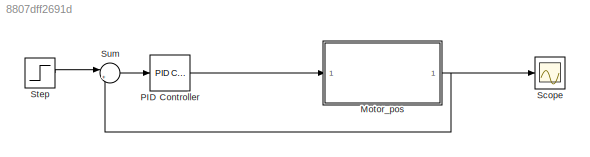
MODEL slx_8807dff2691d
KIND model
CONFIG AbsTol = auto
CONFIG EnableMultiTasking = off
CONFIG FixedStep = auto
CONFIG MaxStep = auto
CONFIG MinStep = auto
CONFIG RelTol = 1e-3
CONFIG SampleTimeConstraint = Unconstrained
CONFIG Solver = ode45
CONFIG SolverName = ode45
CONFIG StartTime = 0.0
CONFIG StopTime = 1
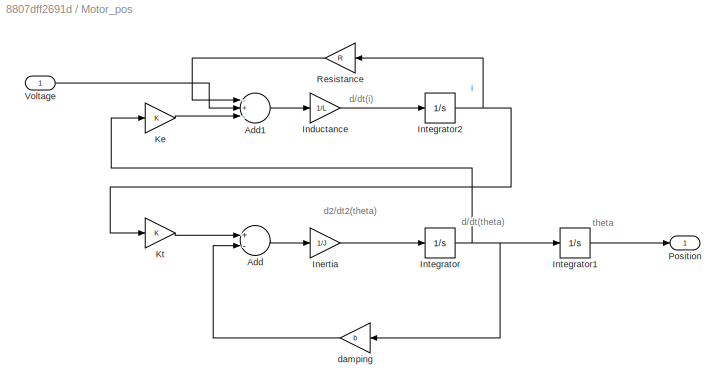
BLOCK [SubSystem] Motor_pos
  Ports = [1, 1]
  RequestExecContextInheritance = off
  Variant = off
BLOCK [Sum] Motor_pos/Add
  InputSameDT = off
  Inputs = +-
  OutDataTypeStr = Inherit: Inherit via internal rule
  Ports = [2, 1]
  SaturateOnIntegerOverflow = off
BLOCK [Sum] Motor_pos/Add1
  InputSameDT = off
  Inputs = -+-
  OutDataTypeStr = Inherit: Inherit via internal rule
  Ports = [3, 1]
  SaturateOnIntegerOverflow = off
BLOCK [Gain] Motor_pos/Inductance
  Gain = 1/L
  OutDataTypeStr = Inherit: Inherit via internal rule
  ParamDataTypeStr = Inherit: Inherit via internal rule
  SaturateOnIntegerOverflow = off
BLOCK [Gain] Motor_pos/Inertia
  Gain = 1/J
  OutDataTypeStr = Inherit: Inherit via internal rule
  ParamDataTypeStr = Inherit: Inherit via internal rule
  SaturateOnIntegerOverflow = off
BLOCK [Integrator] Motor_pos/Integrator
  Ports = [1, 1]
BLOCK [Integrator] Motor_pos/Integrator1
  Ports = [1, 1]
BLOCK [Integrator] Motor_pos/Integrator2
  Ports = [1, 1]
BLOCK [Gain] Motor_pos/Ke
  Gain = K
  OutDataTypeStr = Inherit: Inherit via internal rule
  ParamDataTypeStr = Inherit: Inherit via internal rule
  SaturateOnIntegerOverflow = off
BLOCK [Gain] Motor_pos/Kt
  Gain = K
  OutDataTypeStr = Inherit: Inherit via internal rule
  ParamDataTypeStr = Inherit: Inherit via internal rule
  SaturateOnIntegerOverflow = off
BLOCK [Outport] Motor_pos/Position
  IconDisplay = Port number
BLOCK [Gain] Motor_pos/Resistance
  Gain = R
  OutDataTypeStr = Inherit: Inherit via internal rule
  ParamDataTypeStr = Inherit: Inherit via internal rule
  SaturateOnIntegerOverflow = off
BLOCK [Inport] Motor_pos/Voltage
  IconDisplay = Port number
BLOCK [Gain] Motor_pos/damping
  Gain = b
  OutDataTypeStr = Inherit: Inherit via internal rule
  ParamDataTypeStr = Inherit: Inherit via internal rule
  SaturateOnIntegerOverflow = off
BLOCK [Reference] PID Controller  REF=simulink/Continuous/PID Controller
  Ports = [1, 1]
  SourceBlock = simulink/Continuous/PID Controller
  SourceProductBaseCode = SL
  SourceProductName = Simulink
  SourceType = PID 1dof
BLOCK [Scope] Scope
  NumInputPorts = 1
  Ports = [1]
  ScopeSpecificationString = Simulink.scopes.TimeScopeBlockCfg('CurrentConfiguration', extmgr.ConfigurationSet(extmgr.Configuration('Core','General UI',true),extmgr.Configuration('Core','Source UI',true),extmgr.Configuration('Sources','WiredSimulink',true),extmgr.Configuration('Visuals','Time Domain',true,'SerializedDisplays',{struct('MinYLimReal','-0.15186','MaxYLimReal','1.36673','YLabelReal','','MinYLimMag','0.00000','MaxY...<+1357ch>
BLOCK [Step] Step
  SampleTime = 0
  Time = 0
BLOCK [Sum] Sum
  IconShape = round
  InputSameDT = off
  Inputs = |+-
  OutDataTypeStr = Inherit: Inherit via internal rule
  Ports = [2, 1]
  SaturateOnIntegerOverflow = off
ANNOTATION Motor_pos: d/dt(i)
ANNOTATION Motor_pos: d/dt(theta)
ANNOTATION Motor_pos: d2/dt2(theta)
ANNOTATION Motor_pos: i
ANNOTATION Motor_pos: theta
LINE Motor_pos/Add1:1 -> Motor_pos/Inductance:1
LINE Motor_pos/Add:1 -> Motor_pos/Inertia:1
LINE Motor_pos/Inductance:1 -> Motor_pos/Integrator2:1
LINE Motor_pos/Inertia:1 -> Motor_pos/Integrator:1
LINE Motor_pos/Integrator1:1 -> Motor_pos/Position:1
NET Motor_pos/Integrator2:1 -> Motor_pos/Kt:1, Motor_pos/Resistance:1
NET Motor_pos/Integrator:1 -> Motor_pos/Integrator1:1, Motor_pos/Ke:1, Motor_pos/damping:1
LINE Motor_pos/Ke:1 -> Motor_pos/Add1:3
LINE Motor_pos/Kt:1 -> Motor_pos/Add:1
LINE Motor_pos/Resistance:1 -> Motor_pos/Add1:1
LINE Motor_pos/Voltage:1 -> Motor_pos/Add1:2
LINE Motor_pos/damping:1 -> Motor_pos/Add:2
NET Motor_pos:1 -> Scope:1, Sum:2
LINE PID Controller:1 -> Motor_pos:1
LINE Step:1 -> Sum:1
LINE Sum:1 -> PID Controller:1
note: NET lines group one-source signal fan-out (src -> all destinations, sorted); 1:1 wires keep LINE
